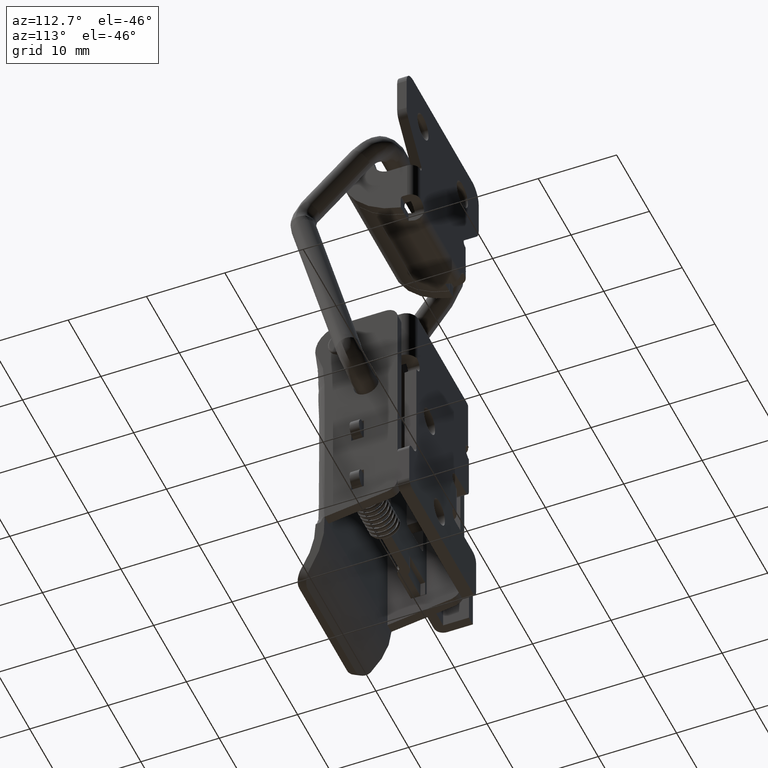
[diagram: clean part render]
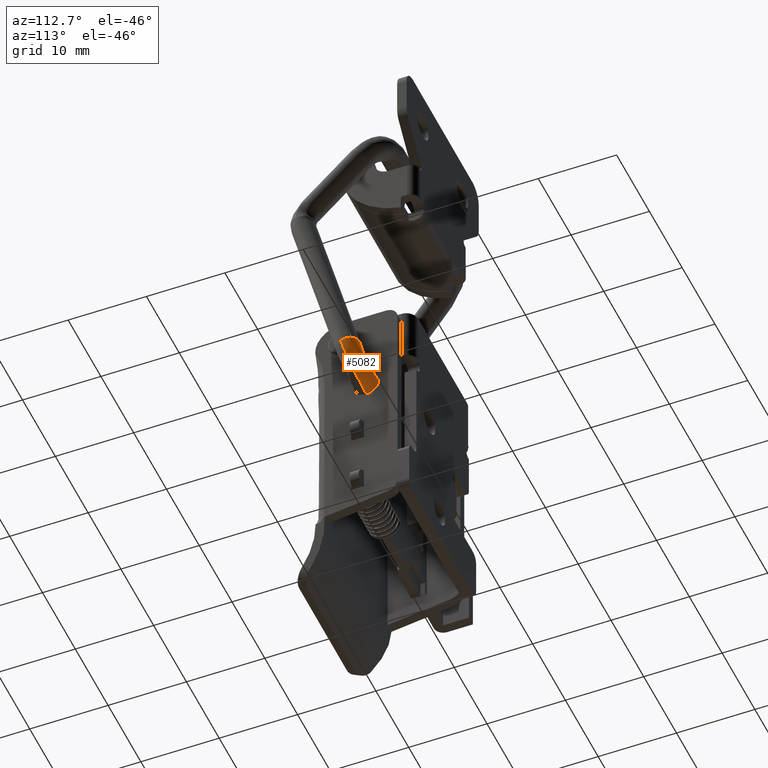
[diagram: same view with one face highlighted and labeled with its STEP entity id]
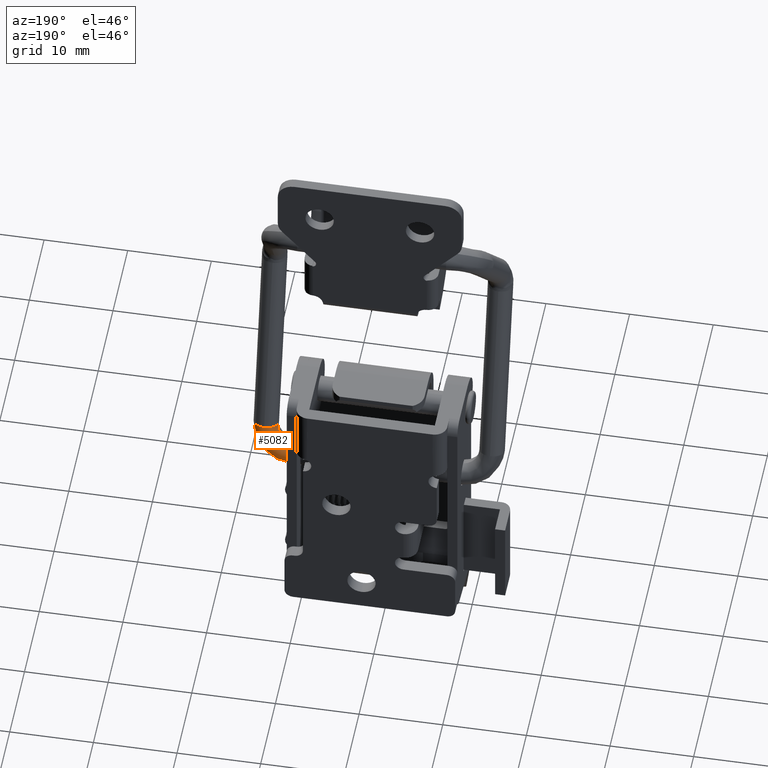
[diagram: same view with one face highlighted and labeled with its STEP entity id]
A machine part, auxiliary view. The second image highlights one B-rep face of the part: STEP entity #5082.
A second angle (auxiliary view) of the same face is appended — the face is thin or edge-on in the first view.
In plain terms, the highlighted face is a freeform B-spline surface patch.
Its self-contained STEP definition (entity closure, byte-faithful):
#5048 = VERTEX_POINT ( 'NONE', #8337 ) ;
#5049 = EDGE_CURVE ( 'NONE', #5054, #5048, #8335, .T. ) ;
#5053 = ORIENTED_EDGE ( 'NONE', *, *, #5411, .T. ) ;
#5054 = VERTEX_POINT ( 'NONE', #8410 ) ;
#5059 = ORIENTED_EDGE ( 'NONE', *, *, #5061, .T. ) ;
#5060 = VERTEX_POINT ( 'NONE', #8506 ) ;
#5061 = EDGE_CURVE ( 'NONE', #5409, #5060, #8561, .T. ) ;
#5074 = ORIENTED_EDGE ( 'NONE', *, *, #5078, .T. ) ;
#5078 = EDGE_CURVE ( 'NONE', #5054, #5391, #8579, .T. ) ;
#5079 = EDGE_LOOP ( 'NONE', ( #5081, #5074, #5053, #5059, #5127 ) ) ;
#5081 = ORIENTED_EDGE ( 'NONE', *, *, #5049, .F. ) ;
#5082 = ADVANCED_FACE ( 'NONE', ( #8606 ), #8604, .F. ) ;
#5127 = ORIENTED_EDGE ( 'NONE', *, *, #5128, .F. ) ;
#5128 = EDGE_CURVE ( 'NONE', #5048, #5060, #8975, .T. ) ;
#5391 = VERTEX_POINT ( 'NONE', #9920 ) ;
#5409 = VERTEX_POINT ( 'NONE', #10106 ) ;
#5411 = EDGE_CURVE ( 'NONE', #5391, #5409, #10105, .T. ) ;
#8333 = CARTESIAN_POINT ( 'NONE',  ( -2.603664459148261400, -10.00000000000116200, -37.50002899999978500 ) ) ;
#8334 = CARTESIAN_POINT ( 'NONE',  ( -2.800013999997628100, -10.00000000000116200, -37.50002899999979900 ) ) ;
#8335 = B_SPLINE_CURVE_WITH_KNOTS ( 'NONE', 3,
 ( #8334, #8333, #8381, #8380, #8379, #8378, #8377, #8376, #8375, #8374, #8373, #8372, #8371, #8370, #8369, #8368, #8367, #8366 ),
 .UNSPECIFIED., .F., .F.,
 ( 4, 2, 2, 2, 2, 2, 2, 2, 4 ),
 ( 0.5000000000000000000, 0.5625000000000000000, 0.6250000000000000000, 0.6875000000000000000, 0.7500000000000000000, 0.8125000000000000000, 0.8750000000000000000, 0.9375000000000000000, 1.000000000000000000 ),
 .UNSPECIFIED. ) ;
#8337 = CARTESIAN_POINT ( 'NONE',  ( -2.800013999997627700, -10.00000000000116200, -40.50002899999979900 ) ) ;
#8366 = CARTESIAN_POINT ( 'NONE',  ( -2.800013999997627700, -10.00000000000116200, -40.50002899999979900 ) ) ;
#8367 = CARTESIAN_POINT ( 'NONE',  ( -2.603664459148261400, -10.00000000000116400, -40.50002899999980600 ) ) ;
#8368 = CARTESIAN_POINT ( 'NONE',  ( -2.407392173458705400, -10.00000000000116500, -40.46098801500226500 ) ) ;
#8369 = CARTESIAN_POINT ( 'NONE',  ( -2.044585529441277600, -10.00000000000116400, -40.31070858253117700 ) ) ;
#8370 = CARTESIAN_POINT ( 'NONE',  ( -1.878193920035254900, -10.00000000000116500, -40.19952926359705000 ) ) ;
#8371 = CARTESIAN_POINT ( 'NONE',  ( -1.600513736400358500, -10.00000000000116400, -39.92184907996217900 ) ) ;
#8372 = CARTESIAN_POINT ( 'NONE',  ( -1.489334417466242000, -10.00000000000116500, -39.75545747055615200 ) ) ;
#8373 = CARTESIAN_POINT ( 'NONE',  ( -1.339054984995156500, -10.00000000000116400, -39.39265082653871300 ) ) ;
#8374 = CARTESIAN_POINT ( 'NONE',  ( -1.300013999997629700, -10.00000000000116500, -39.19637854084916700 ) ) ;
#8375 = CARTESIAN_POINT ( 'NONE',  ( -1.300013999997629900, -10.00000000000116400, -38.80367945915043000 ) ) ;
#8376 = CARTESIAN_POINT ( 'NONE',  ( -1.339054984995155900, -10.00000000000116500, -38.60740717346089200 ) ) ;
#8377 = CARTESIAN_POINT ( 'NONE',  ( -1.489334417466241700, -10.00000000000116400, -38.24460052944346000 ) ) ;
#8378 = CARTESIAN_POINT ( 'NONE',  ( -1.600513736400359700, -10.00000000000116500, -38.07820892003743300 ) ) ;
#8379 = CARTESIAN_POINT ( 'NONE',  ( -1.878193920035256200, -10.00000000000116400, -37.80052873640253400 ) ) ;
#8380 = CARTESIAN_POINT ( 'NONE',  ( -2.044585529441277600, -10.00000000000116000, -37.68934941746840700 ) ) ;
#8381 = CARTESIAN_POINT ( 'NONE',  ( -2.407392173458705800, -10.00000000000116400, -37.53906998499732600 ) ) ;
#8410 = CARTESIAN_POINT ( 'NONE',  ( -2.800013999997628100, -10.00000000000116200, -37.50002899999979900 ) ) ;
#8506 = CARTESIAN_POINT ( 'NONE',  ( -4.049583987499065800, -14.95364014129046900, -35.59131589308403000 ) ) ;
#8552 = CARTESIAN_POINT ( 'NONE',  ( -4.049583987499065800, -14.95364014129046900, -35.59131589308403000 ) ) ;
#8553 = CARTESIAN_POINT ( 'NONE',  ( -3.680783758524270000, -15.05051664782500100, -35.49743350731965600 ) ) ;
#8554 = CARTESIAN_POINT ( 'NONE',  ( -3.275606644055194700, -14.99013330597429800, -35.39429096245400100 ) ) ;
#8555 = CARTESIAN_POINT ( 'NONE',  ( -2.621274615216760300, -14.58894129356056100, -35.22772313759070100 ) ) ;
#8556 = CARTESIAN_POINT ( 'NONE',  ( -2.376148968021204700, -14.25060309629665900, -35.16532355439434800 ) ) ;
#8557 = CARTESIAN_POINT ( 'NONE',  ( -2.252460675955608100, -13.74921962935951600, -35.13383726171354500 ) ) ;
#8558 = CARTESIAN_POINT ( 'NONE',  ( -2.238015785231105800, -13.62461473923094800, -35.13016014685086900 ) ) ;
#8559 = CARTESIAN_POINT ( 'NONE',  ( -2.237871401120718600, -13.50000352313621800, -35.13012339219702100 ) ) ;
#8561 = B_SPLINE_CURVE_WITH_KNOTS ( 'NONE', 3,
 ( #8559, #8558, #8557, #8556, #8555, #8554, #8553, #8552 ),
 .UNSPECIFIED., .F., .F.,
 ( 4, 2, 2, 4 ),
 ( 0.7103148316128331500, 0.7500000000000001100, 0.8750000000000000000, 1.000000000000000000 ),
 .UNSPECIFIED. ) ;
#8572 = CARTESIAN_POINT ( 'NONE',  ( -3.332375390843185200, -12.04635985870917000, -35.40874210691268300 ) ) ;
#8573 = CARTESIAN_POINT ( 'NONE',  ( -3.190538514010544900, -12.04633061402553900, -35.96592300784762100 ) ) ;
#8574 = CARTESIAN_POINT ( 'NONE',  ( -3.050942755490340100, -11.81757413514969100, -36.51430008260922500 ) ) ;
#8575 = CARTESIAN_POINT ( 'NONE',  ( -2.855214703919542400, -11.05341686399441100, -37.28318286768217100 ) ) ;
#8576 = CARTESIAN_POINT ( 'NONE',  ( -2.800020983576182700, -10.52754032825990100, -37.50000156749624800 ) ) ;
#8577 = CARTESIAN_POINT ( 'NONE',  ( -2.800013999997628100, -10.00000000000116200, -37.50002899999979900 ) ) ;
#8579 = B_SPLINE_CURVE_WITH_KNOTS ( 'NONE', 3,
 ( #8577, #8576, #8575, #8574, #8573, #8572 ),
 .UNSPECIFIED., .F., .F.,
 ( 4, 2, 4 ),
 ( 0.1333820935896454000, 0.2161646854362795100, 0.2989472772829140400 ),
 .UNSPECIFIED. ) ;
#8604 = B_SPLINE_SURFACE_WITH_KNOTS ( 'NONE', 3, 3, ( 
 ( #8749, #8748, #8747, #8746, #8745, #8744 ),
 ( #8743, #8742, #8741, #8740, #8739, #8738 ),
 ( #8737, #8736, #8735, #8734, #8733, #8732 ),
 ( #8794, #8793, #8792, #8791, #8790, #8789 ),
 ( #8788, #8787, #8786, #8785, #8784, #8783 ),
 ( #8782, #8781, #8780, #8779, #8778, #8777 ),
 ( #8776, #8775, #8774, #8773, #8772, #8771 ),
 ( #8770, #8769, #8768, #8767, #8766, #8765 ),
 ( #8764, #8763, #8762, #8761, #8760, #8759 ),
 ( #8758, #8757, #8756, #8755, #8754, #8825 ) ),
 .UNSPECIFIED., .F., .F., .F.,
 ( 4, 2, 2, 2, 4 ),
 ( 4, 2, 4 ),
 ( 0.5000000000000000000, 0.6250000000000000000, 0.7500000000000000000, 0.8750000000000000000, 1.000000000000000000 ),
 ( 0.1333820935896454000, 0.2161646854362795100, 0.2989472772829140400 ),
 .UNSPECIFIED. ) ;
#8606 = FACE_OUTER_BOUND ( 'NONE', #5079, .T. ) ;
#8732 = CARTESIAN_POINT ( 'NONE',  ( -2.635693838618559800, -12.39617962152092000, -35.23139371853805800 ) ) ;
#8733 = CARTESIAN_POINT ( 'NONE',  ( -2.472159505580480100, -12.39614288315280000, -35.87380921079765300 ) ) ;
#8734 = CARTESIAN_POINT ( 'NONE',  ( -2.310655884838914700, -12.13301831618558100, -36.50824742015154800 ) ) ;
#8735 = CARTESIAN_POINT ( 'NONE',  ( -2.082406831692869900, -11.24189324543404000, -37.40488316686660400 ) ) ;
#8736 = CARTESIAN_POINT ( 'NONE',  ( -2.017043145256739700, -10.62345222090489800, -37.66165276701124800 ) ) ;
#8737 = CARTESIAN_POINT ( 'NONE',  ( -2.017034011852709700, -10.00000000000116000, -37.66168864458509800 ) ) ;
#8738 = CARTESIAN_POINT ( 'NONE',  ( -2.963575161868370300, -12.14323636524370000, -35.31485972114829500 ) ) ;
#8739 = CARTESIAN_POINT ( 'NONE',  ( -2.815729551388114900, -12.14320510922616100, -35.89564486176480100 ) ) ;
#8740 = CARTESIAN_POINT ( 'NONE',  ( -2.670066791052299900, -11.90493092145548100, -36.46785507253270000 ) ) ;
#8741 = CARTESIAN_POINT ( 'NONE',  ( -2.465332613022924900, -11.10561212377990100, -37.27211682111254700 ) ) ;
#8742 = CARTESIAN_POINT ( 'NONE',  ( -2.407322474891529800, -10.55410146166586000, -37.49999931655290200 ) ) ;
#8743 = CARTESIAN_POINT ( 'NONE',  ( -2.407314918298910200, -10.00000000000116000, -37.50002899999980600 ) ) ;
#8744 = CARTESIAN_POINT ( 'NONE',  ( -3.332375390843177700, -12.04635985870916800, -35.40874210691269800 ) ) ;
#8745 = CARTESIAN_POINT ( 'NONE',  ( -3.190538514010544900, -12.04633061402553900, -35.96592300784762100 ) ) ;
#8746 = CARTESIAN_POINT ( 'NONE',  ( -3.050942755490340100, -11.81757413514969100, -36.51430008260922500 ) ) ;
#8747 = CARTESIAN_POINT ( 'NONE',  ( -2.855214703919542400, -11.05341686399441100, -37.28318286768217100 ) ) ;
#8748 = CARTESIAN_POINT ( 'NONE',  ( -2.800020983576182700, -10.52754032825990100, -37.50000156749624800 ) ) ;
#8749 = CARTESIAN_POINT ( 'NONE',  ( -2.800013999997632600, -10.00000000000116000, -37.50002899999980600 ) ) ;
#8754 = CARTESIAN_POINT ( 'NONE',  ( -3.727424013583752400, -14.95353823618348500, -36.85686395741299700 ) ) ;
#8755 = CARTESIAN_POINT ( 'NONE',  ( -3.405756496409502200, -14.43916600979907900, -38.12047750525307800 ) ) ;
#8756 = CARTESIAN_POINT ( 'NONE',  ( -2.939753072488690200, -12.61980540387850000, -39.95108894578704900 ) ) ;
#8757 = CARTESIAN_POINT ( 'NONE',  ( -2.800042338677075200, -11.32464426009763000, -40.49991767856092700 ) ) ;
#8758 = CARTESIAN_POINT ( 'NONE',  ( -2.800013999997632600, -10.00000000000116000, -40.50002899999979900 ) ) ;
#8759 = CARTESIAN_POINT ( 'NONE',  ( -3.680783758524270000, -15.05051664782500100, -35.49743350731965600 ) ) ;
#8760 = CARTESIAN_POINT ( 'NONE',  ( -3.352615051634024700, -15.05041204494195000, -36.78658580874284900 ) ) ;
#8761 = CARTESIAN_POINT ( 'NONE',  ( -3.024880531971259900, -14.52652279610405900, -38.07403249517494700 ) ) ;
#8762 = CARTESIAN_POINT ( 'NONE',  ( -2.549870981592274900, -12.67200066366480000, -39.94002289921905200 ) ) ;
#8763 = CARTESIAN_POINT ( 'NONE',  ( -2.407344058423484900, -11.35120538488890000, -40.49991453024384900 ) ) ;
#8764 = CARTESIAN_POINT ( 'NONE',  ( -2.407314918298910200, -10.00000000000116000, -40.50002899999979900 ) ) ;
#8765 = CARTESIAN_POINT ( 'NONE',  ( -3.275606644055194700, -14.99013330597429800, -35.39429096245400100 ) ) ;
#8766 = CARTESIAN_POINT ( 'NONE',  ( -2.951183193779805000, -14.99003038992223900, -36.66873069044955000 ) ) ;
#8767 = CARTESIAN_POINT ( 'NONE',  ( -2.627230250256949800, -14.47207311703568100, -37.94132212860760200 ) ) ;
#8768 = CARTESIAN_POINT ( 'NONE',  ( -2.157834238518034900, -12.63946724222170000, -39.78526074605334600 ) ) ;
#8769 = CARTESIAN_POINT ( 'NONE',  ( -2.017062650782035100, -11.33464977683450000, -40.33825685450404600 ) ) ;
#8770 = CARTESIAN_POINT ( 'NONE',  ( -2.017034011852709700, -10.00000000000116000, -40.33836935541454900 ) ) ;
#8771 = CARTESIAN_POINT ( 'NONE',  ( -2.621274615216760300, -14.58894129356056100, -35.22772313759070100 ) ) ;
#8772 = CARTESIAN_POINT ( 'NONE',  ( -2.321734965660485100, -14.58884945928172000, -36.40441128728039600 ) ) ;
#8773 = CARTESIAN_POINT ( 'NONE',  ( -2.022907132610654900, -14.11030486021744100, -37.57830320433645000 ) ) ;
#8774 = CARTESIAN_POINT ( 'NONE',  ( -1.590807944706345000, -12.42331244823446000, -39.27572789312325300 ) ) ;
#8775 = CARTESIAN_POINT ( 'NONE',  ( -1.461698992821364000, -11.22465292009263900, -39.78290941405719400 ) ) ;
#8776 = CARTESIAN_POINT ( 'NONE',  ( -1.461673644582913900, -10.00000000000116000, -39.78300898814475100 ) ) ;
#8777 = CARTESIAN_POINT ( 'NONE',  ( -2.376148968021204700, -14.25060309629665900, -35.16532355439434800 ) ) ;
#8778 = CARTESIAN_POINT ( 'NONE',  ( -2.097594632452080400, -14.25052042130109900, -36.25957463643384700 ) ) ;
#8779 = CARTESIAN_POINT ( 'NONE',  ( -1.819955617342450000, -13.80521399087094100, -37.35023005644264800 ) ) ;
#8780 = CARTESIAN_POINT ( 'NONE',  ( -1.419310047031952200, -12.24102212075612100, -38.92409481142820500 ) ) ;
#8781 = CARTESIAN_POINT ( 'NONE',  ( -1.300036631815134000, -11.13188901164432000, -39.39263917851894800 ) ) ;
#8782 = CARTESIAN_POINT ( 'NONE',  ( -1.300013999997632100, -10.00000000000116000, -39.39272808169855000 ) ) ;
#8783 = CARTESIAN_POINT ( 'NONE',  ( -2.188384196492399800, -13.48947889815634000, -35.11752584894649900 ) ) ;
#8784 = CARTESIAN_POINT ( 'NONE',  ( -1.957038336529919800, -13.48941607902441900, -36.02632684440865100 ) ) ;
#8785 = CARTESIAN_POINT ( 'NONE',  ( -1.727065597187380100, -13.11888284302874100, -36.92973379049824700 ) ) ;
#8786 = CARTESIAN_POINT ( 'NONE',  ( -1.397177953894720000, -11.83094255995859900, -38.22563863347414800 ) ) ;
#8787 = CARTESIAN_POINT ( 'NONE',  ( -1.300030760885869900, -10.92320770083372000, -38.60726407784625300 ) ) ;
#8788 = CARTESIAN_POINT ( 'NONE',  ( -1.300013999997632100, -10.00000000000116000, -38.60732991830109700 ) ) ;
#8789 = CARTESIAN_POINT ( 'NONE',  ( -2.246901296212040000, -13.07137977276756000, -35.13242205696940300 ) ) ;
#8790 = CARTESIAN_POINT ( 'NONE',  ( -2.041487896171124900, -13.07132732433002100, -35.93935200334864500 ) ) ;
#8791 = CARTESIAN_POINT ( 'NONE',  ( -1.837699093505115000, -12.74186887692440200, -36.73990001810945200 ) ) ;
#8792 = CARTESIAN_POINT ( 'NONE',  ( -1.546680044159480100, -11.60567852797910000, -37.88311651351919800 ) ) ;
#8793 = CARTESIAN_POINT ( 'NONE',  ( -1.461687355572722100, -10.80857532049140000, -38.21699515227074800 ) ) ;
#8794 = CARTESIAN_POINT ( 'NONE',  ( -1.461673644582913900, -10.00000000000116000, -38.21704901185490400 ) ) ;
#8825 = CARTESIAN_POINT ( 'NONE',  ( -4.049583987499077300, -14.95364014129046900, -35.59131589308405100 ) ) ;
#8975 = B_SPLINE_CURVE_WITH_KNOTS ( 'NONE', 3,
 ( #9039, #9038, #9037, #9036, #9035, #9034 ),
 .UNSPECIFIED., .F., .F.,
 ( 4, 2, 4 ),
 ( 0.1333820935896454000, 0.2161646854362795100, 0.2989472772829140400 ),
 .UNSPECIFIED. ) ;
#9034 = CARTESIAN_POINT ( 'NONE',  ( -4.049583987499065800, -14.95364014129046900, -35.59131589308403000 ) ) ;
#9035 = CARTESIAN_POINT ( 'NONE',  ( -3.727424013583752400, -14.95353823618348500, -36.85686395741299700 ) ) ;
#9036 = CARTESIAN_POINT ( 'NONE',  ( -3.405756496409502200, -14.43916600979907900, -38.12047750525307800 ) ) ;
#9037 = CARTESIAN_POINT ( 'NONE',  ( -2.939753072488690200, -12.61980540387850000, -39.95108894578704900 ) ) ;
#9038 = CARTESIAN_POINT ( 'NONE',  ( -2.800042338677075200, -11.32464426009763000, -40.49991767856092700 ) ) ;
#9039 = CARTESIAN_POINT ( 'NONE',  ( -2.800013999997627700, -10.00000000000116200, -40.50002899999979900 ) ) ;
#9920 = CARTESIAN_POINT ( 'NONE',  ( -3.332375390843185200, -12.04635985870917000, -35.40874210691268300 ) ) ;
#10098 = CARTESIAN_POINT ( 'NONE',  ( -2.237871401120718600, -13.50000352313621800, -35.13012339219702100 ) ) ;
#10099 = CARTESIAN_POINT ( 'NONE',  ( -2.239236232131012600, -13.23211540494391700, -35.13047082579753100 ) ) ;
#10100 = CARTESIAN_POINT ( 'NONE',  ( -2.308618486264456800, -12.96419804597832100, -35.14813288518907100 ) ) ;
#10101 = CARTESIAN_POINT ( 'NONE',  ( -2.635693838619233000, -12.39617962151975300, -35.23139371853822200 ) ) ;
#10102 = CARTESIAN_POINT ( 'NONE',  ( -2.963575161869505400, -12.14323636524282400, -35.31485972114857900 ) ) ;
#10103 = CARTESIAN_POINT ( 'NONE',  ( -3.332375390843185200, -12.04635985870917000, -35.40874210691268300 ) ) ;
#10105 = B_SPLINE_CURVE_WITH_KNOTS ( 'NONE', 3,
 ( #10103, #10102, #10101, #10100, #10099, #10098 ),
 .UNSPECIFIED., .F., .F.,
 ( 4, 2, 4 ),
 ( 0.5000000000000000000, 0.6250000000000000000, 0.7103148316128331500 ),
 .UNSPECIFIED. ) ;
#10106 = CARTESIAN_POINT ( 'NONE',  ( -2.237871401120718600, -13.50000352313621800, -35.13012339219702100 ) ) ;